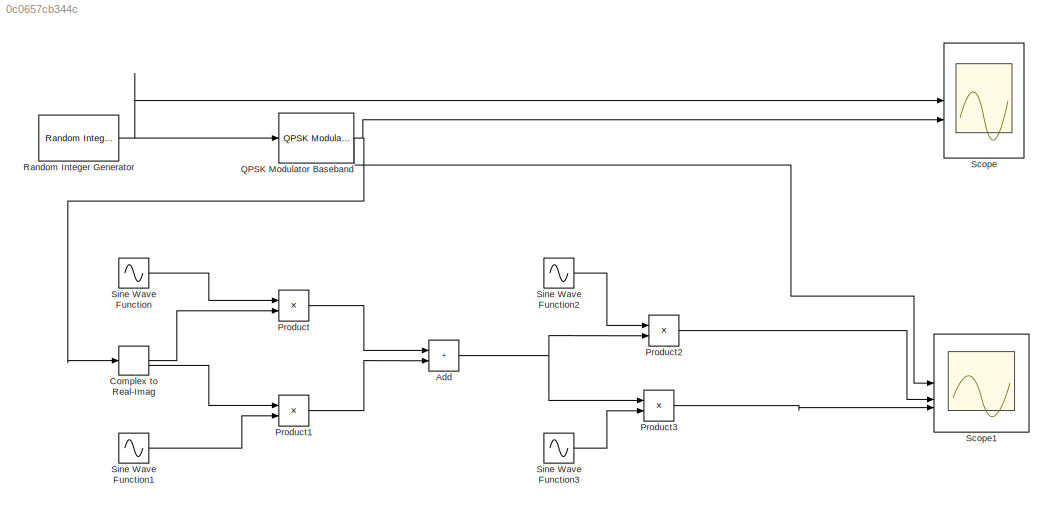
MODEL slx_0c0657cb344c
KIND model
CONFIG AbsTol = auto
CONFIG EnableMultiTasking = off
CONFIG FixedStep = auto
CONFIG MaxStep = auto
CONFIG MinStep = auto
CONFIG RelTol = 1e-3
CONFIG SampleTimeConstraint = Unconstrained
CONFIG SolverName = VariableStepAuto
CONFIG StartTime = 0.0
CONFIG StopTime = 10.0
WORKSPACE source: mxarray member
WORKSPACE samp = 10
BLOCK [Sum] Add
  IconShape = rectangular
BLOCK [ComplexToRealImag] Complex to Real-Imag
BLOCK [Product] Product
BLOCK [Product] Product1
BLOCK [Product] Product2
BLOCK [Product] Product3
BLOCK [Reference] QPSK Modulator Baseband  REF=commdigbbndpm3/QPSK
Modulator
Baseband
  SourceBlock = commdigbbndpm3/QPSK\nModulator\nBaseband
  SourceType = QPSK Modulator Baseband
BLOCK [Reference] Random Integer Generator  REF=commrandsrc3/Random Integer
Generator
  SourceBlock = commrandsrc3/Random Integer\nGenerator
  SourceType = Random Integer Generator
BLOCK [Scope] Scope
  Floating = off
  NumInputPorts = 2
  ScopeSpecificationString = Simulink.scopes.TimeScopeBlockCfg('CurrentConfiguration', extmgr.ConfigurationSet(extmgr.Configuration('Core','General UI',true),extmgr.Configuration('Core','Source UI',true),extmgr.Configuration('Sources','WiredSimulink',true),extmgr.Configuration('Visuals','Time Domain',true,'SerializedDisplays',{struct('MinYLimReal','-0.375','MaxYLimReal','3.375','YLabelReal','','MinYLimMag','0.00000','MaxYLimM...<+3048ch>
BLOCK [Scope] Scope1
  Floating = off
  NumInputPorts = 3
  ScopeSpecificationString = Simulink.scopes.TimeScopeBlockCfg('CurrentConfiguration', extmgr.ConfigurationSet(extmgr.Configuration('Core','General UI',true),extmgr.Configuration('Core','Source UI',true),extmgr.Configuration('Sources','WiredSimulink',true,'DataLoggingVariableName','ScopeData1'),extmgr.Configuration('Visuals','Time Domain',true,'SerializedDisplays',{struct('MinYLimReal','-0.88388','MaxYLimReal','0.88388','YLab...<+3509ch>
BLOCK [Sin] Sine Wave Function
  Amplitude = samp
  Frequency = 4*2*pi
  Phase = pi/2
  SampleTime = 0.001
BLOCK [Sin] Sine Wave Function1
  Amplitude = samp
  Frequency = 4*2*pi
  SampleTime = 0.001
BLOCK [Sin] Sine Wave Function2
  Amplitude = samp
  Frequency = 4*2*pi
  Phase = pi/2
  SampleTime = 0.001
BLOCK [Sin] Sine Wave Function3
  Amplitude = samp
  Frequency = 4*2*pi
  SampleTime = 0.001
NET Add:1 -> Product2:2, Product3:1
LINE Complex to Real-Imag:1 -> Product:2
LINE Complex to Real-Imag:2 -> Product1:1
LINE Product1:1 -> Add:2
LINE Product2:1 -> Scope1:2
LINE Product3:1 -> Scope1:3
LINE Product:1 -> Add:1
NET QPSK Modulator Baseband:1 -> Complex to Real-Imag:1, Scope1:1, Scope:2
NET Random Integer Generator:1 -> QPSK Modulator Baseband:1, Scope:1
LINE Sine Wave Function1:1 -> Product1:2
LINE Sine Wave Function2:1 -> Product2:1
LINE Sine Wave Function3:1 -> Product3:2
LINE Sine Wave Function:1 -> Product:1
note: NET lines group one-source signal fan-out (src -> all destinations, sorted); 1:1 wires keep LINE
